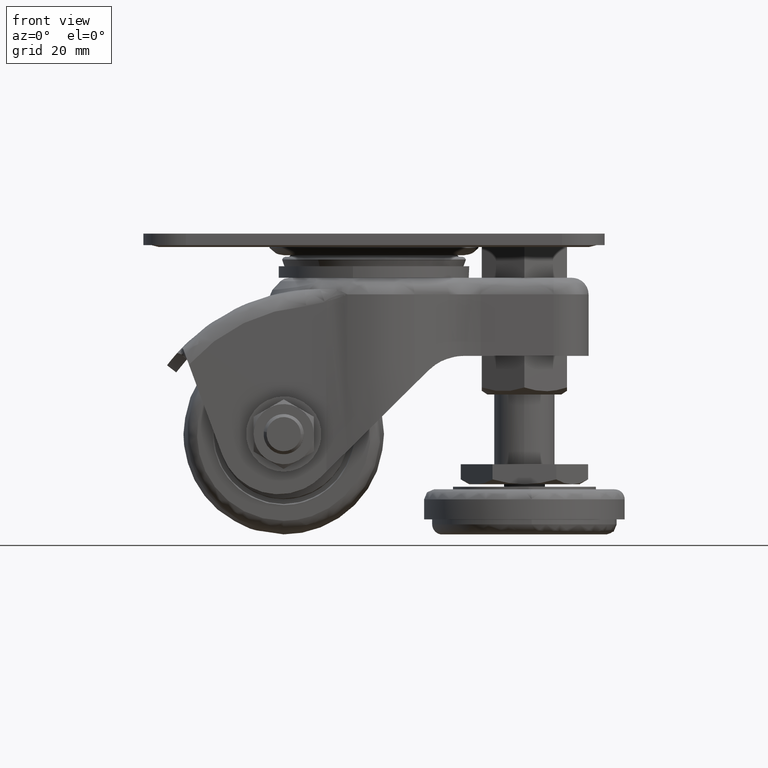
[diagram: clean part render]
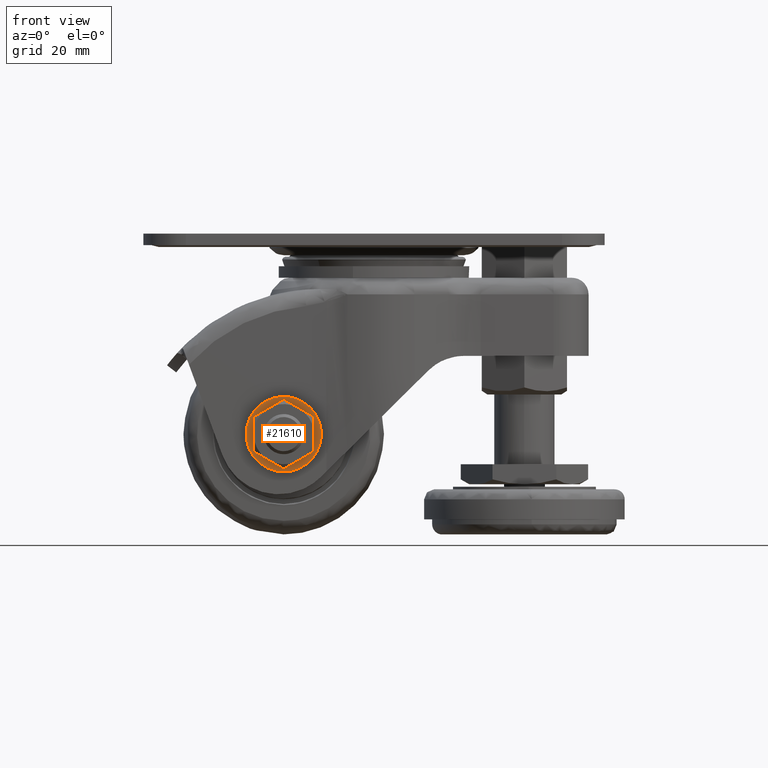
[diagram: same view with one face highlighted and labeled with its STEP entity id]
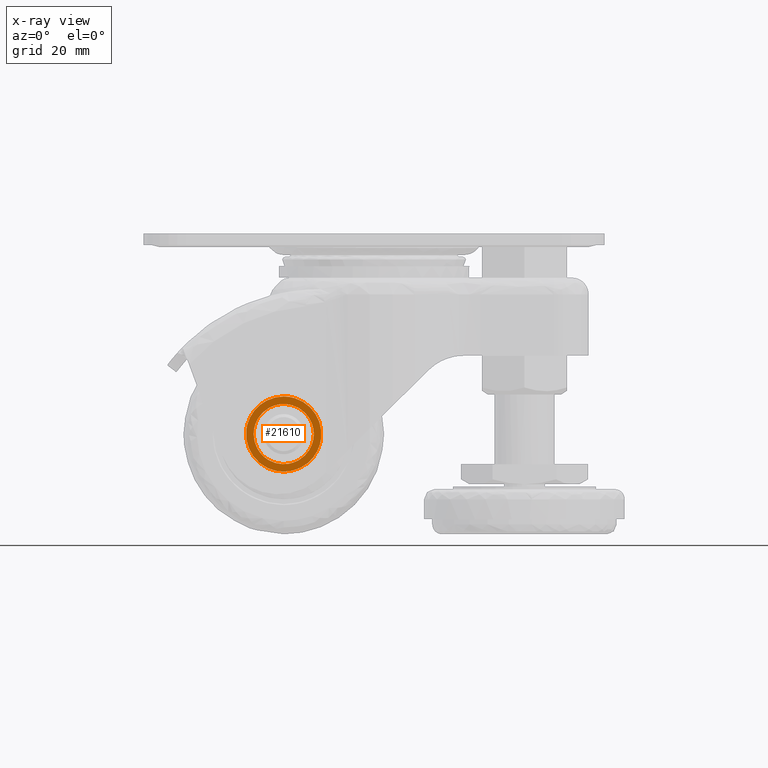
[diagram: x-ray of the same camera — body ghosted, the highlighted face saturated]
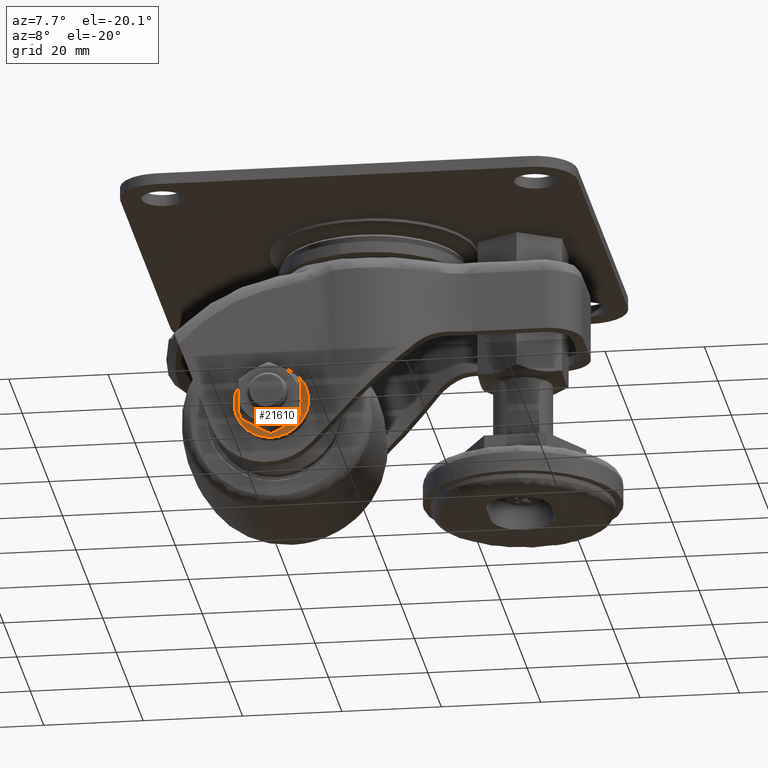
[diagram: same view with one face highlighted and labeled with its STEP entity id]
A machine part, front view. The second image highlights one B-rep face of the part: STEP entity #21610.
The next image is the same camera in x-ray: the body ghosted, the highlighted face saturated — about 0% of this face is hidden behind the body in this view.
A second angle (auxiliary view) of the same face is appended — the face is thin or edge-on in the first view.
In plain terms, the highlighted face is a freeform B-spline surface patch.
Its self-contained STEP definition (entity closure, byte-faithful):
#21282=CARTESIAN_POINT('',(-10.552427552278310,-19.800000000000001,-40.885250759973793));
#21283=VERTEX_POINT('',#21282);
#21284=CARTESIAN_POINT('',(-17.999999000000098,-19.800000000000001,-32.499994000000093));
#21285=VERTEX_POINT('',#21284);
#21286=CARTESIAN_POINT('',(-10.552427552278310,-19.799999999999997,-40.885250759973786));
#21287=CARTESIAN_POINT('',(-10.499999000000098,-19.799999999999997,-40.444174897437946));
#21288=CARTESIAN_POINT('',(-10.499999000000100,-19.800000000000001,-39.999994000000093));
#21289=CARTESIAN_POINT('',(-10.499999000000100,-19.800000000000001,-32.499994000000093));
#21290=CARTESIAN_POINT('',(-17.999999000000098,-19.800000000000001,-32.499994000000093));
#21298=(BOUNDED_CURVE()B_SPLINE_CURVE(2,(#21286,#21287,#21288,#21289,#21290),.UNSPECIFIED.,.F.,.U.)B_SPLINE_CURVE_WITH_KNOTS((3,2,3),(0.229562473513465,0.250000000000000,0.500000000000000),.UNSPECIFIED.)CURVE()GEOMETRIC_REPRESENTATION_ITEM()RATIONAL_B_SPLINE_CURVE((0.956026754183615,0.976055948331095,1.0,0.707106781186547,1.0))REPRESENTATION_ITEM(''));
#21299=EDGE_CURVE('',#21283,#21285,#21298,.T.);
#21340=CARTESIAN_POINT('',(-25.486009988156550,-19.800000000000001,-39.542129953365290));
#21341=VERTEX_POINT('',#21340);
#21347=CARTESIAN_POINT('',(-17.999999000000098,-19.800000000000001,-32.499994000000093));
#21348=CARTESIAN_POINT('',(-25.055294501559811,-19.800000000000001,-32.499994000000100));
#21349=CARTESIAN_POINT('',(-25.486009988156557,-19.799999999999997,-39.542129953365290));
#21357=(BOUNDED_CURVE()B_SPLINE_CURVE(2,(#21347,#21348,#21349),.UNSPECIFIED.,.F.,.U.)B_SPLINE_CURVE_WITH_KNOTS((3,3),(0.500000000000000,0.739332962236281),.UNSPECIFIED.)CURVE()GEOMETRIC_REPRESENTATION_ITEM()RATIONAL_B_SPLINE_CURVE((1.0,0.719603993289829,0.976072041661012))REPRESENTATION_ITEM(''));
#21358=EDGE_CURVE('',#21285,#21341,#21357,.T.);
#21381=CARTESIAN_POINT('',(-17.999999000000098,-19.800000000000001,-47.499994000000093));
#21382=VERTEX_POINT('',#21381);
#21383=CARTESIAN_POINT('',(-17.999999000000098,-19.800000000000001,-47.499994000000093));
#21384=CARTESIAN_POINT('',(-11.338690055451339,-19.800000000000001,-47.499994000000093));
#21385=CARTESIAN_POINT('',(-10.552427552278312,-19.800000000000001,-40.885250759973786));
#21393=(BOUNDED_CURVE()B_SPLINE_CURVE(2,(#21383,#21384,#21385),.UNSPECIFIED.,.F.,.U.)B_SPLINE_CURVE_WITH_KNOTS((3,3),(0.0,0.229562473513465),.UNSPECIFIED.)CURVE()GEOMETRIC_REPRESENTATION_ITEM()RATIONAL_B_SPLINE_CURVE((1.0,0.731050832855453,0.956026754183615))REPRESENTATION_ITEM(''));
#21394=EDGE_CURVE('',#21382,#21283,#21393,.T.);
#21396=CARTESIAN_POINT('',(-25.486009988156550,-19.800000000000001,-39.542129953365290));
#21397=CARTESIAN_POINT('',(-25.499999000000095,-19.800000000000001,-39.770848275136949));
#21398=CARTESIAN_POINT('',(-25.499999000000098,-19.800000000000001,-39.999994000000093));
#21399=CARTESIAN_POINT('',(-25.499999000000102,-19.800000000000001,-47.499994000000086));
#21400=CARTESIAN_POINT('',(-17.999999000000098,-19.800000000000001,-47.499994000000093));
#21408=(BOUNDED_CURVE()B_SPLINE_CURVE(2,(#21396,#21397,#21398,#21399,#21400),.UNSPECIFIED.,.F.,.U.)B_SPLINE_CURVE_WITH_KNOTS((3,2,3),(0.739332962236281,0.750000000000000,1.0),.UNSPECIFIED.)CURVE()GEOMETRIC_REPRESENTATION_ITEM()RATIONAL_B_SPLINE_CURVE((0.976072041661012,0.987502787896719,1.0,0.707106781186547,1.0))REPRESENTATION_ITEM(''));
#21409=EDGE_CURVE('',#21341,#21382,#21408,.T.);
#21507=CARTESIAN_POINT('',(-26.249065723546810,-19.800000000000001,-48.249242334806503));
#21508=CARTESIAN_POINT('',(-9.750885471906077,-19.800000000000001,-48.249242334806503));
#21509=CARTESIAN_POINT('',(-26.249065723546810,-19.800000000000001,-31.750742580653309));
#21510=CARTESIAN_POINT('',(-9.750885471906077,-19.800000000000001,-31.750742580653309));
#21511=B_SPLINE_SURFACE_WITH_KNOTS('',1,1,((#21507,#21509),(#21508,#21510)),.UNSPECIFIED.,.F.,.F.,.U.,(2,2),(2,2),(0.0,16.498180251640740),(0.0,16.498499754153190),.UNSPECIFIED.);
#21512=ORIENTED_EDGE('',*,*,#21394,.T.);
#21513=ORIENTED_EDGE('',*,*,#21299,.T.);
#21514=ORIENTED_EDGE('',*,*,#21358,.T.);
#21515=ORIENTED_EDGE('',*,*,#21409,.T.);
#21516=EDGE_LOOP('',(#21512,#21513,#21514,#21515));
#21517=FACE_OUTER_BOUND('',#21516,.T.);
#21518=CARTESIAN_POINT('',(-14.999999399543761,-19.800000000000001,-34.803841346616849));
#21519=VERTEX_POINT('',#21518);
#21520=CARTESIAN_POINT('',(-20.999998600456401,-19.800000000000001,-34.803841346616899));
#21521=VERTEX_POINT('',#21520);
#21522=CARTESIAN_POINT('',(-14.999999399543750,-19.800000000000001,-34.803841346616849));
#21523=CARTESIAN_POINT('',(-17.999999000000088,-19.800000000000001,-33.071791077293398));
#21524=CARTESIAN_POINT('',(-20.999998600456429,-19.800000000000001,-34.803841346616842));
#21532=(BOUNDED_CURVE()B_SPLINE_CURVE(2,(#21522,#21523,#21524),.UNSPECIFIED.,.F.,.U.)CURVE()GEOMETRIC_REPRESENTATION_ITEM()QUASI_UNIFORM_CURVE()RATIONAL_B_SPLINE_CURVE((1.0,0.866025442230542,1.0))REPRESENTATION_ITEM(''));
#21533=EDGE_CURVE('',#21519,#21521,#21532,.T.);
#21534=ORIENTED_EDGE('',*,*,#21533,.F.);
#21535=CARTESIAN_POINT('',(-11.999999000000100,-19.800000000000001,-39.999994000000093));
#21536=VERTEX_POINT('',#21535);
#21537=CARTESIAN_POINT('',(-14.999999399543761,-19.800000000000001,-34.803841346616849));
#21538=CARTESIAN_POINT('',(-11.999999000000095,-19.800000000000001,-36.535892077293482));
#21539=CARTESIAN_POINT('',(-11.999999000000100,-19.800000000000001,-39.999994000000093));
#21547=(BOUNDED_CURVE()B_SPLINE_CURVE(2,(#21537,#21538,#21539),.UNSPECIFIED.,.F.,.U.)CURVE()GEOMETRIC_REPRESENTATION_ITEM()QUASI_UNIFORM_CURVE()RATIONAL_B_SPLINE_CURVE((1.0,0.866025384561385,1.0))REPRESENTATION_ITEM(''));
#21548=EDGE_CURVE('',#21519,#21536,#21547,.T.);
#21549=ORIENTED_EDGE('',*,*,#21548,.T.);
#21550=CARTESIAN_POINT('',(-14.999999399543899,-19.800000000000001,-45.196146653383401));
#21551=VERTEX_POINT('',#21550);
#21552=CARTESIAN_POINT('',(-14.999999399543890,-19.800000000000001,-45.196146653383423));
#21553=CARTESIAN_POINT('',(-11.999999000000102,-19.800000000000001,-43.464095922706804));
#21554=CARTESIAN_POINT('',(-11.999999000000100,-19.800000000000001,-39.999994000000093));
#21562=(BOUNDED_CURVE()B_SPLINE_CURVE(2,(#21552,#21553,#21554),.UNSPECIFIED.,.F.,.U.)CURVE()GEOMETRIC_REPRESENTATION_ITEM()QUASI_UNIFORM_CURVE()RATIONAL_B_SPLINE_CURVE((1.0,0.866025384561379,1.0))REPRESENTATION_ITEM(''));
#21563=EDGE_CURVE('',#21551,#21536,#21562,.T.);
#21564=ORIENTED_EDGE('',*,*,#21563,.F.);
#21565=CARTESIAN_POINT('',(-20.999998600456301,-19.800000000000001,-45.196146653383401));
#21566=VERTEX_POINT('',#21565);
#21567=CARTESIAN_POINT('',(-20.999998600456308,-19.800000000000001,-45.196146653383423));
#21568=CARTESIAN_POINT('',(-17.999999000000109,-19.800000000000004,-46.928196922706697));
#21569=CARTESIAN_POINT('',(-14.999999399543890,-19.800000000000001,-45.196146653383423));
#21577=(BOUNDED_CURVE()B_SPLINE_CURVE(2,(#21567,#21568,#21569),.UNSPECIFIED.,.F.,.U.)CURVE()GEOMETRIC_REPRESENTATION_ITEM()QUASI_UNIFORM_CURVE()RATIONAL_B_SPLINE_CURVE((1.0,0.866025442230554,1.0))REPRESENTATION_ITEM(''));
#21578=EDGE_CURVE('',#21566,#21551,#21577,.T.);
#21579=ORIENTED_EDGE('',*,*,#21578,.F.);
#21580=CARTESIAN_POINT('',(-23.999999000000098,-19.800000000000001,-39.999994000000093));
#21581=VERTEX_POINT('',#21580);
#21582=CARTESIAN_POINT('',(-23.999999000000098,-19.800000000000001,-39.999994000000093));
#21583=CARTESIAN_POINT('',(-23.999999000000095,-19.799999999999997,-43.464095922706804));
#21584=CARTESIAN_POINT('',(-20.999998600456308,-19.800000000000001,-45.196146653383423));
#21592=(BOUNDED_CURVE()B_SPLINE_CURVE(2,(#21582,#21583,#21584),.UNSPECIFIED.,.F.,.U.)CURVE()GEOMETRIC_REPRESENTATION_ITEM()QUASI_UNIFORM_CURVE()RATIONAL_B_SPLINE_CURVE((1.0,0.866025384561379,1.0))REPRESENTATION_ITEM(''));
#21593=EDGE_CURVE('',#21581,#21566,#21592,.T.);
#21594=ORIENTED_EDGE('',*,*,#21593,.F.);
#21595=CARTESIAN_POINT('',(-20.999998600456429,-19.800000000000001,-34.803841346616842));
#21596=CARTESIAN_POINT('',(-23.999999000000102,-19.800000000000001,-36.535892077293482));
#21597=CARTESIAN_POINT('',(-23.999999000000098,-19.800000000000001,-39.999994000000093));
#21605=(BOUNDED_CURVE()B_SPLINE_CURVE(2,(#21595,#21596,#21597),.UNSPECIFIED.,.F.,.U.)CURVE()GEOMETRIC_REPRESENTATION_ITEM()QUASI_UNIFORM_CURVE()RATIONAL_B_SPLINE_CURVE((1.0,0.866025384561385,1.0))REPRESENTATION_ITEM(''));
#21606=EDGE_CURVE('',#21521,#21581,#21605,.T.);
#21607=ORIENTED_EDGE('',*,*,#21606,.F.);
#21608=EDGE_LOOP('',(#21534,#21549,#21564,#21579,#21594,#21607));
#21609=FACE_BOUND('',#21608,.T.);
#21610=ADVANCED_FACE('',(#21517,#21609),#21511,.T.);